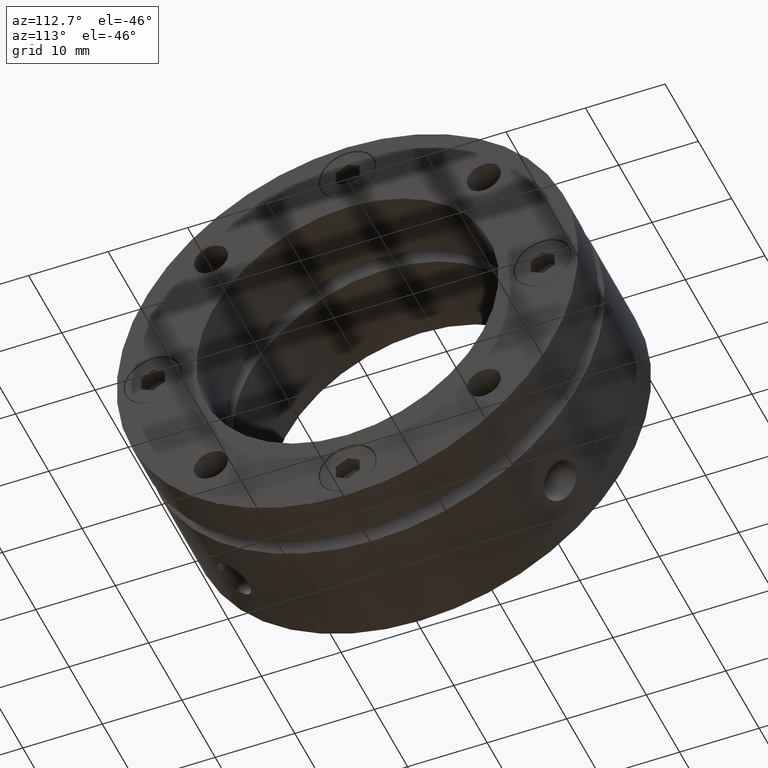
[diagram: clean part render]
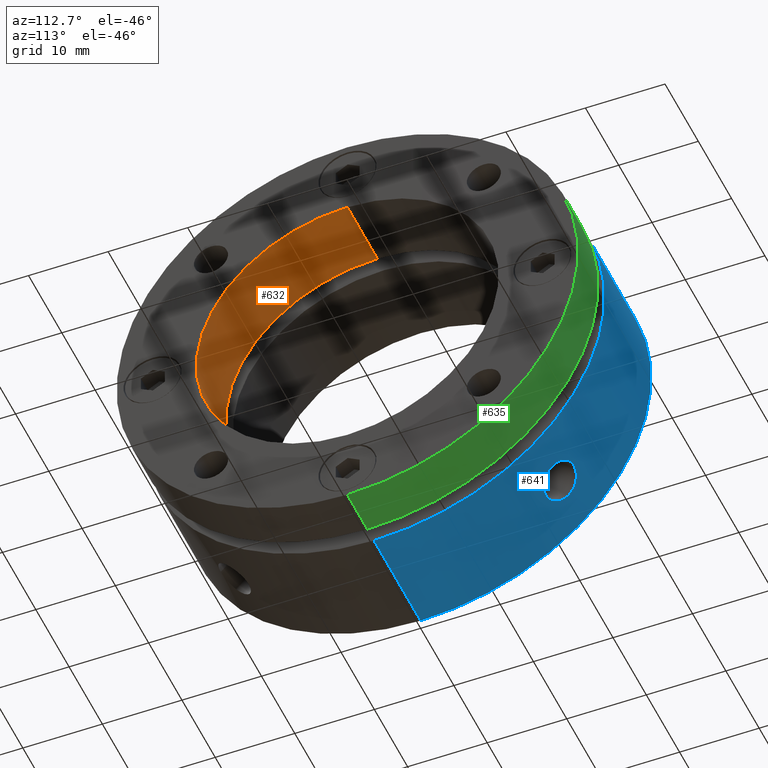
[diagram: same view with three faces highlighted in distinct colors, each labeled with its STEP entity id]
A machine part, auxiliary view with three faces highlighted in distinct colors.
Their STEP definitions:

[orange] entity #632 — the highlighted cylindrical surface (partial cylindrical patch) has radius 19 mm, axis along (1, 0, 0).
#45 = ORIENTED_EDGE ( 'NONE', *, *, #3517, .T. ) ;
#71 = ORIENTED_EDGE ( 'NONE', *, *, #3499, .F. ) ;
#155 = ORIENTED_EDGE ( 'NONE', *, *, #3515, .T. ) ;
#181 = ORIENTED_EDGE ( 'NONE', *, *, #3519, .F. ) ;
#452 = VERTEX_POINT ( 'NONE', #1709 ) ;
#453 = VERTEX_POINT ( 'NONE', #1702 ) ;
#457 = VERTEX_POINT ( 'NONE', #1712 ) ;
#458 = VERTEX_POINT ( 'NONE', #1713 ) ;
#524 = AXIS2_PLACEMENT_3D ( 'NONE', #2991, #2992, #2993 ) ;
#534 = AXIS2_PLACEMENT_3D ( 'NONE', #3037, #3038, #3039 ) ;
#632 = ADVANCED_FACE ( 'NONE', ( #1406 ), #1415, .F. ) ;
#774 = AXIS2_PLACEMENT_3D ( 'NONE', #1864, #1862, #1860 ) ;
#1115 = CIRCLE ( 'NONE', #524, 19.00000000000000000 ) ;
#1137 = LINE ( 'NONE', #3032, #1140 ) ;
#1139 = CIRCLE ( 'NONE', #534, 19.00000000000000000 ) ;
#1140 = VECTOR ( 'NONE', #3034, 1000.000000000000000 ) ;
#1141 = LINE ( 'NONE', #3040, #1146 ) ;
#1146 = VECTOR ( 'NONE', #3036, 1000.000000000000000 ) ;
#1406 = FACE_OUTER_BOUND ( 'NONE', #3332, .T. ) ;
#1415 = CYLINDRICAL_SURFACE ( 'NONE', #774, 19.00000000000000000 ) ;
#1702 = CARTESIAN_POINT ( 'NONE',  ( 21.99999999999999300, 0.0000000000000000000, -19.00000000000000000 ) ) ;
#1709 = CARTESIAN_POINT ( 'NONE',  ( 21.99999999999999300, 2.326828918379971000E-015, 19.00000000000000000 ) ) ;
#1712 = CARTESIAN_POINT ( 'NONE',  ( 13.00000000000001100, 2.326828918379971000E-015, 19.00000000000000000 ) ) ;
#1713 = CARTESIAN_POINT ( 'NONE',  ( 13.00000000000001100, 0.0000000000000000000, -19.00000000000000000 ) ) ;
#1860 = DIRECTION ( 'NONE',  ( 0.0000000000000000000, 0.0000000000000000000, -1.000000000000000000 ) ) ;
#1862 = DIRECTION ( 'NONE',  ( 1.000000000000000000, 0.0000000000000000000, 0.0000000000000000000 ) ) ;
#1864 = CARTESIAN_POINT ( 'NONE',  ( 10.99999999999999500, 0.0000000000000000000, 0.0000000000000000000 ) ) ;
#2991 = CARTESIAN_POINT ( 'NONE',  ( 21.99999999999999300, 0.0000000000000000000, 0.0000000000000000000 ) ) ;
#2992 = DIRECTION ( 'NONE',  ( -1.000000000000000000, -0.0000000000000000000, -0.0000000000000000000 ) ) ;
#2993 = DIRECTION ( 'NONE',  ( 0.0000000000000000000, 0.0000000000000000000, -1.000000000000000000 ) ) ;
#3032 = CARTESIAN_POINT ( 'NONE',  ( 10.99999999999999500, 2.326828918379971000E-015, 19.00000000000000000 ) ) ;
#3034 = DIRECTION ( 'NONE',  ( 1.000000000000000000, 0.0000000000000000000, 0.0000000000000000000 ) ) ;
#3036 = DIRECTION ( 'NONE',  ( 1.000000000000000000, 0.0000000000000000000, 0.0000000000000000000 ) ) ;
#3037 = CARTESIAN_POINT ( 'NONE',  ( 13.00000000000001100, 0.0000000000000000000, 0.0000000000000000000 ) ) ;
#3038 = DIRECTION ( 'NONE',  ( -1.000000000000000000, -0.0000000000000000000, -0.0000000000000000000 ) ) ;
#3039 = DIRECTION ( 'NONE',  ( 0.0000000000000000000, 0.0000000000000000000, -1.000000000000000000 ) ) ;
#3040 = CARTESIAN_POINT ( 'NONE',  ( 10.99999999999999500, 0.0000000000000000000, -19.00000000000000000 ) ) ;
#3332 = EDGE_LOOP ( 'NONE', ( #45, #155, #71, #181 ) ) ;
#3499 = EDGE_CURVE ( 'NONE', #453, #452, #1115, .T. ) ;
#3515 = EDGE_CURVE ( 'NONE', #457, #452, #1137, .T. ) ;
#3517 = EDGE_CURVE ( 'NONE', #458, #457, #1139, .T. ) ;
#3519 = EDGE_CURVE ( 'NONE', #458, #453, #1141, .T. ) ;

[blue] entity #641 — the highlighted cylindrical surface (partial cylindrical patch) has radius 29 mm, axis along (1, 0, 0).
#3 = CARTESIAN_POINT ( 'NONE',  ( -8.673617379884035500E-015, 0.0000000000000000000, 0.0000000000000000000 ) ) ;
#8 = ORIENTED_EDGE ( 'NONE', *, *, #3418, .T. ) ;
#25 = ORIENTED_EDGE ( 'NONE', *, *, #3421, .T. ) ;
#35 = ORIENTED_EDGE ( 'NONE', *, *, #3436, .T. ) ;
#47 = ORIENTED_EDGE ( 'NONE', *, *, #3429, .T. ) ;
#54 = ORIENTED_EDGE ( 'NONE', *, *, #859, .T. ) ;
#78 = ORIENTED_EDGE ( 'NONE', *, *, #857, .T. ) ;
#103 = ORIENTED_EDGE ( 'NONE', *, *, #3434, .T. ) ;
#109 = EDGE_LOOP ( 'NONE', ( #47, #8, #35, #165 ) ) ;
#165 = ORIENTED_EDGE ( 'NONE', *, *, #3432, .F. ) ;
#493 = AXIS2_PLACEMENT_3D ( 'NONE', #3, #2595, #2790 ) ;
#496 = AXIS2_PLACEMENT_3D ( 'NONE', #2837, #2838, #2839 ) ;
#641 = ADVANCED_FACE ( 'NONE', ( #1424, #1432, #1428 ), #1435, .T. ) ;
#783 = AXIS2_PLACEMENT_3D ( 'NONE', #1889, #1890, #1888 ) ;
#857 = EDGE_CURVE ( 'NONE', #1211, #1202, #1641, .T. ) ;
#859 = EDGE_CURVE ( 'NONE', #1201, #1210, #1646, .T. ) ;
#990 = LINE ( 'NONE', #2546, #994 ) ;
#994 = VECTOR ( 'NONE', #2543, 1000.000000000000000 ) ;
#1005 = CIRCLE ( 'NONE', #493, 29.00000000000000400 ) ;
#1008 = LINE ( 'NONE', #3556, #1015 ) ;
#1012 = CIRCLE ( 'NONE', #496, 29.00000000000000400 ) ;
#1015 = VECTOR ( 'NONE', #2795, 1000.000000000000000 ) ;
#1200 = VERTEX_POINT ( 'NONE', #2279 ) ;
#1201 = VERTEX_POINT ( 'NONE', #2280 ) ;
#1202 = VERTEX_POINT ( 'NONE', #2281 ) ;
#1207 = VERTEX_POINT ( 'NONE', #2286 ) ;
#1210 = VERTEX_POINT ( 'NONE', #2289 ) ;
#1211 = VERTEX_POINT ( 'NONE', #2290 ) ;
#1213 = VERTEX_POINT ( 'NONE', #2292 ) ;
#1214 = VERTEX_POINT ( 'NONE', #2293 ) ;
#1424 = FACE_BOUND ( 'NONE', #3303, .T. ) ;
#1428 = FACE_OUTER_BOUND ( 'NONE', #109, .T. ) ;
#1432 = FACE_BOUND ( 'NONE', #3305, .T. ) ;
#1435 = CYLINDRICAL_SURFACE ( 'NONE', #783, 29.00000000000000400 ) ;
#1636 = B_SPLINE_CURVE_WITH_KNOTS ( 'NONE', 3,
 ( #2553, #2551, #2556, #2557, #2558, #2559, #2560, #2561, #2562, #2563, #2564, #2565, #2566, #2567, #2568, #2569, #2570, #2571, #2572, #2573, #2574, #2575, #2576, #2577, #2578, #2579, #2580, #2581, #2582, #2583, #2584, #2585, #2586, #2587 ),
 .UNSPECIFIED., .F., .F.,
 ( 4, 2, 2, 2, 2, 2, 2, 2, 2, 2, 2, 2, 2, 2, 2, 2, 4 ),
 ( 0.01172885886875082000, 0.01221748855719004300, 0.01270611824562926600, 0.01319474793406848900, 0.01368337762250771200, 0.01417200731094693500, 0.01466063699938616000, 0.01514926668782538300, 0.01563789637626460800, 0.01612652606470382800, 0.01661515575314305400, 0.01710378544158227800, 0.01759241513002150100, 0.01808104481846072400, 0.01856967450689994700, 0.01905830419533917000, 0.01954693388377839300 ),
 .UNSPECIFIED. ) ;
#1639 = B_SPLINE_CURVE_WITH_KNOTS ( 'NONE', 3,
 ( #2796, #2797, #2801, #2802, #2803, #2804, #2805, #2806, #2807, #2808, #2809, #2810, #2811, #2812, #2813, #2814, #2815, #2816, #2817, #2818, #2819, #2820, #2821, #2822, #2823, #2824, #2825, #2826, #2827, #2828, #2829, #2830, #2831, #2832 ),
 .UNSPECIFIED., .F., .F.,
 ( 4, 2, 2, 2, 2, 2, 2, 2, 2, 2, 2, 2, 2, 2, 2, 2, 4 ),
 ( 0.003910783848401371000, 0.004399413537173209100, 0.004888043225945048200, 0.005376672914716888900, 0.005865302603488729700, 0.006353932292260569500, 0.006842561981032411200, 0.007331191669804252800, 0.007819821358576093500, 0.008308451047347936000, 0.008797080736119775000, 0.009285710424891617500, 0.009774340113663456500, 0.01026296980243529900, 0.01075159949120714000, 0.01124022917997898400, 0.01172885886875083200 ),
 .UNSPECIFIED. ) ;
#1641 = B_SPLINE_CURVE_WITH_KNOTS ( 'NONE', 3,
 ( #2038, #2037, #2036, #2039, #2040, #2041, #2042, #2043, #2044, #2045, #2046, #2047, #2048, #2049, #2050, #2051, #2052, #2053, #2054, #2055, #2056, #2057, #2058, #2059, #2060, #2061, #2062, #2063, #2064, #2065, #2066, #2067, #2068, #2069 ),
 .UNSPECIFIED., .F., .F.,
 ( 4, 2, 2, 2, 2, 2, 2, 2, 2, 2, 2, 2, 2, 2, 2, 2, 4 ),
 ( 0.01172885886875083200, 0.01221748855719005500, 0.01270611824562928000, 0.01319474793406850300, 0.01368337762250772600, 0.01417200731094694900, 0.01466063699938617400, 0.01514926668782539700, 0.01563789637626462200, 0.01612652606470384500, 0.01661515575314306800, 0.01710378544158229100, 0.01759241513002151500, 0.01808104481846074100, 0.01856967450689996400, 0.01905830419533918700, 0.01954693388377841100 ),
 .UNSPECIFIED. ) ;
#1646 = B_SPLINE_CURVE_WITH_KNOTS ( 'NONE', 3,
 ( #2075, #2070, #2071, #2076, #2077, #2078, #2079, #2080, #2081, #2082, #2083, #2084, #2085, #2086, #2087, #2088, #2089, #2090, #2091, #2092, #2093, #2094, #2095, #2096, #2097, #2098, #2099, #2100, #2101, #2102, #2103, #2104, #2105, #2106 ),
 .UNSPECIFIED., .F., .F.,
 ( 4, 2, 2, 2, 2, 2, 2, 2, 2, 2, 2, 2, 2, 2, 2, 2, 4 ),
 ( 0.003910783848401363200, 0.004399413537173201300, 0.004888043225945040400, 0.005376672914716881100, 0.005865302603488721900, 0.006353932292260562600, 0.006842561981032403400, 0.007331191669804244100, 0.007819821358576086600, 0.008308451047347925600, 0.008797080736119768100, 0.009285710424891608800, 0.009774340113663449600, 0.01026296980243529200, 0.01075159949120713100, 0.01124022917997897500, 0.01172885886875082000 ),
 .UNSPECIFIED. ) ;
#1888 = DIRECTION ( 'NONE',  ( 0.0000000000000000000, 0.0000000000000000000, -1.000000000000000000 ) ) ;
#1889 = CARTESIAN_POINT ( 'NONE',  ( 10.99999999999999300, 0.0000000000000000000, 0.0000000000000000000 ) ) ;
#1890 = DIRECTION ( 'NONE',  ( 1.000000000000000000, 0.0000000000000000000, 0.0000000000000000000 ) ) ;
#2036 = CARTESIAN_POINT ( 'NONE',  ( 6.671209411699219800, 22.18698607935332100, -18.67454627982972300 ) ) ;
#2037 = CARTESIAN_POINT ( 'NONE',  ( 6.836889293315132400, 22.19752466078071900, -18.66199075484798800 ) ) ;
#2038 = CARTESIAN_POINT ( 'NONE',  ( 6.999999999999992900, 22.19752466078072200, -18.66199075484799200 ) ) ;
#2039 = CARTESIAN_POINT ( 'NONE',  ( 6.350602221593687700, 22.14559756433346700, -18.72360912221539000 ) ) ;
#2040 = CARTESIAN_POINT ( 'NONE',  ( 6.194766286574620500, 22.11497340511872200, -18.75984821444914600 ) ) ;
#2041 = CARTESIAN_POINT ( 'NONE',  ( 5.892077017659619100, 22.03341440721714100, -18.85557220818597900 ) ) ;
#2042 = CARTESIAN_POINT ( 'NONE',  ( 5.745830729501783200, 21.98232687178327200, -18.91521975453383000 ) ) ;
#2043 = CARTESIAN_POINT ( 'NONE',  ( 5.475107132603087100, 21.86353243827018000, -19.05240620973999900 ) ) ;
#2044 = CARTESIAN_POINT ( 'NONE',  ( 5.348899357913803800, 21.79542242833628800, -19.13042679679525900 ) ) ;
#2045 = CARTESIAN_POINT ( 'NONE',  ( 5.115517966158140700, 21.64047073392180200, -19.30553533760306100 ) ) ;
#2046 = CARTESIAN_POINT ( 'NONE',  ( 5.012136730428754700, 21.55612772977841400, -19.39978651902036000 ) ) ;
#2047 = CARTESIAN_POINT ( 'NONE',  ( 4.831177672506670200, 21.37390565747478300, -19.60037031873259000 ) ) ;
#2048 = CARTESIAN_POINT ( 'NONE',  ( 4.752923106869284100, 21.27482800575629100, -19.70798420472281300 ) ) ;
#2049 = CARTESIAN_POINT ( 'NONE',  ( 4.627524710443264400, 21.06777683135185000, -19.92916775664428600 ) ) ;
#2050 = CARTESIAN_POINT ( 'NONE',  ( 4.580265046816364800, 20.96038554305367900, -20.04215347677030200 ) ) ;
#2051 = CARTESIAN_POINT ( 'NONE',  ( 4.516342887760563600, 20.73762049845395300, -20.27256210156900800 ) ) ;
#2052 = CARTESIAN_POINT ( 'NONE',  ( 4.499883565422372600, 20.62167052778379200, -20.39053697614957300 ) ) ;
#2053 = CARTESIAN_POINT ( 'NONE',  ( 4.500117689778695900, 20.38801750899700600, -20.62416145168139200 ) ) ;
#2054 = CARTESIAN_POINT ( 'NONE',  ( 4.516447802042619300, 20.27215593875855900, -20.73801408011930600 ) ) ;
#2055 = CARTESIAN_POINT ( 'NONE',  ( 4.580206628080247800, 20.04239206593742400, -20.96015397528889000 ) ) ;
#2056 = CARTESIAN_POINT ( 'NONE',  ( 4.628416924226098800, 19.92726727274733600, -21.06957362854537800 ) ) ;
#2057 = CARTESIAN_POINT ( 'NONE',  ( 4.754105446092657900, 19.70623094034710500, -21.27645120723633800 ) ) ;
#2058 = CARTESIAN_POINT ( 'NONE',  ( 4.830982297680537700, 19.60056917450993600, -21.37372611167655400 ) ) ;
#2059 = CARTESIAN_POINT ( 'NONE',  ( 5.012565598953405500, 19.39932887028400200, -21.55654237683489800 ) ) ;
#2060 = CARTESIAN_POINT ( 'NONE',  ( 5.118178343002605300, 19.30341673895289000, -21.64235231917999900 ) ) ;
#2061 = CARTESIAN_POINT ( 'NONE',  ( 5.348833087511976300, 19.13060039567769600, -21.79526187514384700 ) ) ;
#2062 = CARTESIAN_POINT ( 'NONE',  ( 5.474693285963685000, 19.05255251492174700, -21.86340826021076800 ) ) ;
#2063 = CARTESIAN_POINT ( 'NONE',  ( 5.748046894809351500, 18.91416056203410200, -21.98324153349767200 ) ) ;
#2064 = CARTESIAN_POINT ( 'NONE',  ( 5.893454299515426900, 18.85511098082234600, -22.03380790690972500 ) ) ;
#2065 = CARTESIAN_POINT ( 'NONE',  ( 6.194281383739776100, 18.76002730759315900, -22.11482028857760400 ) ) ;
#2066 = CARTESIAN_POINT ( 'NONE',  ( 6.351927524470921700, 18.72328271223128500, -22.14587360183627100 ) ) ;
#2067 = CARTESIAN_POINT ( 'NONE',  ( 6.674643550635283700, 18.67414618415509900, -22.18732289852592700 ) ) ;
#2068 = CARTESIAN_POINT ( 'NONE',  ( 6.836889045201711900, 18.66199075484798400, -22.19752466078072900 ) ) ;
#2069 = CARTESIAN_POINT ( 'NONE',  ( 6.999999999999992900, 18.66199075484798400, -22.19752466078072900 ) ) ;
#2070 = CARTESIAN_POINT ( 'NONE',  ( 7.163110954909309500, 22.19752466078073300, 18.66199075484798800 ) ) ;
#2071 = CARTESIAN_POINT ( 'NONE',  ( 7.328791089934384200, 22.18698604690868200, 18.67454631854177500 ) ) ;
#2075 = CARTESIAN_POINT ( 'NONE',  ( 6.999999999999992900, 22.19752466078072900, 18.66199075484798400 ) ) ;
#2076 = CARTESIAN_POINT ( 'NONE',  ( 7.649398740487888500, 22.14559740782088000, 18.72360930749730900 ) ) ;
#2077 = CARTESIAN_POINT ( 'NONE',  ( 7.805234892621212100, 22.11497315728584900, 18.75984850724459800 ) ) ;
#2078 = CARTESIAN_POINT ( 'NONE',  ( 8.107924566968145900, 22.03341391034282300, 18.85557278943687700 ) ) ;
#2079 = CARTESIAN_POINT ( 'NONE',  ( 8.254171002879294500, 21.98232622904115600, 18.91522050272665100 ) ) ;
#2080 = CARTESIAN_POINT ( 'NONE',  ( 8.524894842937687400, 21.86353145396199000, 19.05240734050099900 ) ) ;
#2081 = CARTESIAN_POINT ( 'NONE',  ( 8.651102712503501400, 21.79542124658690800, 19.13042814526029300 ) ) ;
#2082 = CARTESIAN_POINT ( 'NONE',  ( 8.884484225384289500, 21.64046908597384400, 19.30553718693549900 ) ) ;
#2083 = CARTESIAN_POINT ( 'NONE',  ( 8.987865394785846000, 21.55612589309481200, 19.39978856227068200 ) ) ;
#2084 = CARTESIAN_POINT ( 'NONE',  ( 9.168824333069506900, 21.37390333452956500, 19.60037285425833200 ) ) ;
#2085 = CARTESIAN_POINT ( 'NONE',  ( 9.247078799891678400, 21.27482539859592600, 19.70798702155400800 ) ) ;
#2086 = CARTESIAN_POINT ( 'NONE',  ( 9.372476817786655100, 21.06777376682278200, 19.92917099862554400 ) ) ;
#2087 = CARTESIAN_POINT ( 'NONE',  ( 9.419736255052415100, 20.96038223865167900, 20.04215693526426600 ) ) ;
#2088 = CARTESIAN_POINT ( 'NONE',  ( 9.483657853192907400, 20.73761668369855100, 20.27256600650579400 ) ) ;
#2089 = CARTESIAN_POINT ( 'NONE',  ( 9.500116828457468200, 20.62166606313038700, 20.39054148882278000 ) ) ;
#2090 = CARTESIAN_POINT ( 'NONE',  ( 9.499881907783503700, 20.38801344745415600, 20.62416546416109100 ) ) ;
#2091 = CARTESIAN_POINT ( 'NONE',  ( 9.483551465865751600, 20.27215207472594100, 20.73801785504051800 ) ) ;
#2092 = CARTESIAN_POINT ( 'NONE',  ( 9.419792068213675800, 20.04238859372669900, 20.96015729318005300 ) ) ;
#2093 = CARTESIAN_POINT ( 'NONE',  ( 9.371581518802322800, 19.92726399046937400, 21.06957673019084600 ) ) ;
#2094 = CARTESIAN_POINT ( 'NONE',  ( 9.245892671011118200, 19.70622817327488700, 21.27645376744169400 ) ) ;
#2095 = CARTESIAN_POINT ( 'NONE',  ( 9.169015707227634600, 19.60056664924231400, 21.37372842538444200 ) ) ;
#2096 = CARTESIAN_POINT ( 'NONE',  ( 8.987432254802950400, 19.39932680590989400, 21.55654423257545500 ) ) ;
#2097 = CARTESIAN_POINT ( 'NONE',  ( 8.881819506822875400, 19.30341492832802800, 21.64235393242091400 ) ) ;
#2098 = CARTESIAN_POINT ( 'NONE',  ( 8.651164854266376400, 19.13059905319686000, 21.79526305180085900 ) ) ;
#2099 = CARTESIAN_POINT ( 'NONE',  ( 8.525304735573518800, 19.05255138129913900, 21.86340924704134600 ) ) ;
#2100 = CARTESIAN_POINT ( 'NONE',  ( 8.251951343062524200, 18.91415980189287200, 21.98324218647277900 ) ) ;
#2101 = CARTESIAN_POINT ( 'NONE',  ( 8.106544136692129100, 18.85511040750020200, 22.03380839699892800 ) ) ;
#2102 = CARTESIAN_POINT ( 'NONE',  ( 7.805717435693329900, 18.76002701349492700, 22.11482053754050600 ) ) ;
#2103 = CARTESIAN_POINT ( 'NONE',  ( 7.648071496905436600, 18.72328252472629700, 22.14587376021934900 ) ) ;
#2104 = CARTESIAN_POINT ( 'NONE',  ( 7.325355955965575200, 18.67414614753104700, 22.18732292920768900 ) ) ;
#2105 = CARTESIAN_POINT ( 'NONE',  ( 7.163110706795888100, 18.66199075484799200, 22.19752466078072200 ) ) ;
#2106 = CARTESIAN_POINT ( 'NONE',  ( 6.999999999999992900, 18.66199075484799200, 22.19752466078072200 ) ) ;
#2279 = CARTESIAN_POINT ( 'NONE',  ( -8.673617379884035500E-015, 0.0000000000000000000, -29.00000000000000400 ) ) ;
#2280 = CARTESIAN_POINT ( 'NONE',  ( 6.999999999999992900, 22.19752466078072900, 18.66199075484798400 ) ) ;
#2281 = CARTESIAN_POINT ( 'NONE',  ( 6.999999999999992900, 18.66199075484798400, -22.19752466078072900 ) ) ;
#2286 = CARTESIAN_POINT ( 'NONE',  ( -8.673617379884035500E-015, 3.551475717527324800E-015, 29.00000000000000400 ) ) ;
#2289 = CARTESIAN_POINT ( 'NONE',  ( 6.999999999999992900, 18.66199075484799200, 22.19752466078072200 ) ) ;
#2290 = CARTESIAN_POINT ( 'NONE',  ( 6.999999999999992900, 22.19752466078072200, -18.66199075484799200 ) ) ;
#2292 = CARTESIAN_POINT ( 'NONE',  ( 14.00000000000000000, 0.0000000000000000000, -29.00000000000000400 ) ) ;
#2293 = CARTESIAN_POINT ( 'NONE',  ( 14.00000000000000000, 3.551475717527324800E-015, 29.00000000000000400 ) ) ;
#2543 = DIRECTION ( 'NONE',  ( 1.000000000000000000, 0.0000000000000000000, 0.0000000000000000000 ) ) ;
#2546 = CARTESIAN_POINT ( 'NONE',  ( 10.99999999999999300, 3.551475717527324800E-015, 29.00000000000000400 ) ) ;
#2551 = CARTESIAN_POINT ( 'NONE',  ( 6.836889293315128000, 18.66199075484798800, 22.19752466078071900 ) ) ;
#2553 = CARTESIAN_POINT ( 'NONE',  ( 6.999999999999992900, 18.66199075484799200, 22.19752466078072200 ) ) ;
#2556 = CARTESIAN_POINT ( 'NONE',  ( 6.671209411699217100, 18.67454627982972300, 22.18698607935332100 ) ) ;
#2557 = CARTESIAN_POINT ( 'NONE',  ( 6.350602221593685000, 18.72360912221539000, 22.14559756433346700 ) ) ;
#2558 = CARTESIAN_POINT ( 'NONE',  ( 6.194766286574620500, 18.75984821444914600, 22.11497340511872200 ) ) ;
#2559 = CARTESIAN_POINT ( 'NONE',  ( 5.892077017659619100, 18.85557220818597900, 22.03341440721714100 ) ) ;
#2560 = CARTESIAN_POINT ( 'NONE',  ( 5.745830729501782300, 18.91521975453383000, 21.98232687178327200 ) ) ;
#2561 = CARTESIAN_POINT ( 'NONE',  ( 5.475107132603085300, 19.05240620974000300, 21.86353243827018000 ) ) ;
#2562 = CARTESIAN_POINT ( 'NONE',  ( 5.348899357913802000, 19.13042679679526300, 21.79542242833628800 ) ) ;
#2563 = CARTESIAN_POINT ( 'NONE',  ( 5.115517966158137100, 19.30553533760306100, 21.64047073392180200 ) ) ;
#2564 = CARTESIAN_POINT ( 'NONE',  ( 5.012136730428753000, 19.39978651902036000, 21.55612772977841400 ) ) ;
#2565 = CARTESIAN_POINT ( 'NONE',  ( 4.831177672506668400, 19.60037031873259000, 21.37390565747478300 ) ) ;
#2566 = CARTESIAN_POINT ( 'NONE',  ( 4.752923106869282300, 19.70798420472281300, 21.27482800575629100 ) ) ;
#2567 = CARTESIAN_POINT ( 'NONE',  ( 4.627524710443262600, 19.92916775664428600, 21.06777683135185000 ) ) ;
#2568 = CARTESIAN_POINT ( 'NONE',  ( 4.580265046816363900, 20.04215347677030600, 20.96038554305367900 ) ) ;
#2569 = CARTESIAN_POINT ( 'NONE',  ( 4.516342887760561800, 20.27256210156902200, 20.73762049845395000 ) ) ;
#2570 = CARTESIAN_POINT ( 'NONE',  ( 4.499883565422371700, 20.39053697614956900, 20.62167052778379200 ) ) ;
#2571 = CARTESIAN_POINT ( 'NONE',  ( 4.500117689778695900, 20.62416145168139200, 20.38801750899700200 ) ) ;
#2572 = CARTESIAN_POINT ( 'NONE',  ( 4.516447802042619300, 20.73801408011930600, 20.27215593875855100 ) ) ;
#2573 = CARTESIAN_POINT ( 'NONE',  ( 4.580206628080246900, 20.96015397528889000, 20.04239206593742400 ) ) ;
#2574 = CARTESIAN_POINT ( 'NONE',  ( 4.628416924226099700, 21.06957362854537800, 19.92726727274733600 ) ) ;
#2575 = CARTESIAN_POINT ( 'NONE',  ( 4.754105446092659700, 21.27645120723633100, 19.70623094034710100 ) ) ;
#2576 = CARTESIAN_POINT ( 'NONE',  ( 4.830982297680542100, 21.37372611167655700, 19.60056917450993600 ) ) ;
#2577 = CARTESIAN_POINT ( 'NONE',  ( 5.012565598953408100, 21.55654237683489800, 19.39932887028399800 ) ) ;
#2578 = CARTESIAN_POINT ( 'NONE',  ( 5.118178343002604400, 21.64235231918000200, 19.30341673895289000 ) ) ;
#2579 = CARTESIAN_POINT ( 'NONE',  ( 5.348833087511977200, 21.79526187514384700, 19.13060039567768600 ) ) ;
#2580 = CARTESIAN_POINT ( 'NONE',  ( 5.474693285963688500, 21.86340826021076500, 19.05255251492174300 ) ) ;
#2581 = CARTESIAN_POINT ( 'NONE',  ( 5.748046894809355900, 21.98324153349767200, 18.91416056203409500 ) ) ;
#2582 = CARTESIAN_POINT ( 'NONE',  ( 5.893454299515433100, 22.03380790690972500, 18.85511098082234200 ) ) ;
#2583 = CARTESIAN_POINT ( 'NONE',  ( 6.194281383739781400, 22.11482028857760400, 18.76002730759316300 ) ) ;
#2584 = CARTESIAN_POINT ( 'NONE',  ( 6.351927524470922600, 22.14587360183627100, 18.72328271223128500 ) ) ;
#2585 = CARTESIAN_POINT ( 'NONE',  ( 6.674643550635284600, 22.18732289852592700, 18.67414618415509900 ) ) ;
#2586 = CARTESIAN_POINT ( 'NONE',  ( 6.836889045201713700, 22.19752466078072900, 18.66199075484798400 ) ) ;
#2587 = CARTESIAN_POINT ( 'NONE',  ( 6.999999999999992900, 22.19752466078072900, 18.66199075484798400 ) ) ;
#2595 = DIRECTION ( 'NONE',  ( 1.000000000000000000, 0.0000000000000000000, 0.0000000000000000000 ) ) ;
#2790 = DIRECTION ( 'NONE',  ( 0.0000000000000000000, 0.0000000000000000000, -1.000000000000000000 ) ) ;
#2795 = DIRECTION ( 'NONE',  ( 1.000000000000000000, 0.0000000000000000000, 0.0000000000000000000 ) ) ;
#2796 = CARTESIAN_POINT ( 'NONE',  ( 6.999999999999992900, 18.66199075484798400, -22.19752466078072900 ) ) ;
#2797 = CARTESIAN_POINT ( 'NONE',  ( 7.163110954909309500, 18.66199075484798100, -22.19752466078074300 ) ) ;
#2801 = CARTESIAN_POINT ( 'NONE',  ( 7.328791089934385100, 18.67454631854178300, -22.18698604690868200 ) ) ;
#2802 = CARTESIAN_POINT ( 'NONE',  ( 7.649398740487889400, 18.72360930749730900, -22.14559740782088000 ) ) ;
#2803 = CARTESIAN_POINT ( 'NONE',  ( 7.805234892621211200, 18.75984850724459500, -22.11497315728584600 ) ) ;
#2804 = CARTESIAN_POINT ( 'NONE',  ( 8.107924566968145900, 18.85557278943688100, -22.03341391034282600 ) ) ;
#2805 = CARTESIAN_POINT ( 'NONE',  ( 8.254171002879296300, 18.91522050272665100, -21.98232622904115600 ) ) ;
#2806 = CARTESIAN_POINT ( 'NONE',  ( 8.524894842937691000, 19.05240734050100200, -21.86353145396199700 ) ) ;
#2807 = CARTESIAN_POINT ( 'NONE',  ( 8.651102712503494300, 19.13042814526028900, -21.79542124658690500 ) ) ;
#2808 = CARTESIAN_POINT ( 'NONE',  ( 8.884484225384282400, 19.30553718693548900, -21.64046908597384100 ) ) ;
#2809 = CARTESIAN_POINT ( 'NONE',  ( 8.987865394785846000, 19.39978856227068200, -21.55612589309480900 ) ) ;
#2810 = CARTESIAN_POINT ( 'NONE',  ( 9.168824333069506900, 19.60037285425833500, -21.37390333452956200 ) ) ;
#2811 = CARTESIAN_POINT ( 'NONE',  ( 9.247078799891680100, 19.70798702155401500, -21.27482539859592900 ) ) ;
#2812 = CARTESIAN_POINT ( 'NONE',  ( 9.372476817786656900, 19.92917099862554800, -21.06777376682278200 ) ) ;
#2813 = CARTESIAN_POINT ( 'NONE',  ( 9.419736255052415100, 20.04215693526427000, -20.96038223865168200 ) ) ;
#2814 = CARTESIAN_POINT ( 'NONE',  ( 9.483657853192905700, 20.27256600650579100, -20.73761668369854800 ) ) ;
#2815 = CARTESIAN_POINT ( 'NONE',  ( 9.500116828457468200, 20.39054148882278000, -20.62166606313038700 ) ) ;
#2816 = CARTESIAN_POINT ( 'NONE',  ( 9.499881907783503700, 20.62416546416109100, -20.38801344745415600 ) ) ;
#2817 = CARTESIAN_POINT ( 'NONE',  ( 9.483551465865751600, 20.73801785504051800, -20.27215207472594100 ) ) ;
#2818 = CARTESIAN_POINT ( 'NONE',  ( 9.419792068213674000, 20.96015729318004600, -20.04238859372669200 ) ) ;
#2819 = CARTESIAN_POINT ( 'NONE',  ( 9.371581518802321000, 21.06957673019084300, -19.92726399046937400 ) ) ;
#2820 = CARTESIAN_POINT ( 'NONE',  ( 9.245892671011120000, 21.27645376744169800, -19.70622817327490100 ) ) ;
#2821 = CARTESIAN_POINT ( 'NONE',  ( 9.169015707227634600, 21.37372842538444200, -19.60056664924231000 ) ) ;
#2822 = CARTESIAN_POINT ( 'NONE',  ( 8.987432254802952200, 21.55654423257545500, -19.39932680590989700 ) ) ;
#2823 = CARTESIAN_POINT ( 'NONE',  ( 8.881819506822875400, 21.64235393242091000, -19.30341492832802800 ) ) ;
#2824 = CARTESIAN_POINT ( 'NONE',  ( 8.651164854266376400, 21.79526305180085200, -19.13059905319686000 ) ) ;
#2825 = CARTESIAN_POINT ( 'NONE',  ( 8.525304735573520500, 21.86340924704133200, -19.05255138129913600 ) ) ;
#2826 = CARTESIAN_POINT ( 'NONE',  ( 8.251951343062527800, 21.98324218647276500, -18.91415980189286100 ) ) ;
#2827 = CARTESIAN_POINT ( 'NONE',  ( 8.106544136692132700, 22.03380839699892800, -18.85511040750020200 ) ) ;
#2828 = CARTESIAN_POINT ( 'NONE',  ( 7.805717435693329900, 22.11482053754051300, -18.76002701349493100 ) ) ;
#2829 = CARTESIAN_POINT ( 'NONE',  ( 7.648071496905436600, 22.14587376021934900, -18.72328252472630400 ) ) ;
#2830 = CARTESIAN_POINT ( 'NONE',  ( 7.325355955965577000, 22.18732292920768500, -18.67414614753105100 ) ) ;
#2831 = CARTESIAN_POINT ( 'NONE',  ( 7.163110706795888100, 22.19752466078072900, -18.66199075484799200 ) ) ;
#2832 = CARTESIAN_POINT ( 'NONE',  ( 6.999999999999992900, 22.19752466078072200, -18.66199075484799200 ) ) ;
#2837 = CARTESIAN_POINT ( 'NONE',  ( 14.00000000000000000, 0.0000000000000000000, 0.0000000000000000000 ) ) ;
#2838 = DIRECTION ( 'NONE',  ( -1.000000000000000000, -0.0000000000000000000, -0.0000000000000000000 ) ) ;
#2839 = DIRECTION ( 'NONE',  ( 0.0000000000000000000, 0.0000000000000000000, -1.000000000000000000 ) ) ;
#3303 = EDGE_LOOP ( 'NONE', ( #25, #54 ) ) ;
#3305 = EDGE_LOOP ( 'NONE', ( #78, #103 ) ) ;
#3418 = EDGE_CURVE ( 'NONE', #1207, #1214, #990, .T. ) ;
#3421 = EDGE_CURVE ( 'NONE', #1210, #1201, #1636, .T. ) ;
#3429 = EDGE_CURVE ( 'NONE', #1200, #1207, #1005, .T. ) ;
#3432 = EDGE_CURVE ( 'NONE', #1200, #1213, #1008, .T. ) ;
#3434 = EDGE_CURVE ( 'NONE', #1202, #1211, #1639, .T. ) ;
#3436 = EDGE_CURVE ( 'NONE', #1214, #1213, #1012, .T. ) ;
#3556 = CARTESIAN_POINT ( 'NONE',  ( 10.99999999999999300, 0.0000000000000000000, -29.00000000000000400 ) ) ;

[green] entity #635 — the highlighted cylindrical surface (partial cylindrical patch) has radius 29 mm, axis along (1, 0, 0).
#83 = ORIENTED_EDGE ( 'NONE', *, *, #3495, .T. ) ;
#95 = ORIENTED_EDGE ( 'NONE', *, *, #3503, .T. ) ;
#162 = ORIENTED_EDGE ( 'NONE', *, *, #3522, .T. ) ;
#168 = ORIENTED_EDGE ( 'NONE', *, *, #3514, .F. ) ;
#455 = VERTEX_POINT ( 'NONE', #1705 ) ;
#456 = VERTEX_POINT ( 'NONE', #1711 ) ;
#522 = AXIS2_PLACEMENT_3D ( 'NONE', #2982, #2983, #2984 ) ;
#526 = AXIS2_PLACEMENT_3D ( 'NONE', #2999, #3000, #3001 ) ;
#635 = ADVANCED_FACE ( 'NONE', ( #1412 ), #1421, .T. ) ;
#777 = AXIS2_PLACEMENT_3D ( 'NONE', #1873, #1871, #1869 ) ;
#1108 = CIRCLE ( 'NONE', #522, 29.00000000000000400 ) ;
#1120 = CIRCLE ( 'NONE', #526, 29.00000000000000400 ) ;
#1136 = LINE ( 'NONE', #3027, #1138 ) ;
#1138 = VECTOR ( 'NONE', #3015, 1000.000000000000000 ) ;
#1149 = LINE ( 'NONE', #3045, #1151 ) ;
#1151 = VECTOR ( 'NONE', #3033, 1000.000000000000000 ) ;
#1412 = FACE_OUTER_BOUND ( 'NONE', #3331, .T. ) ;
#1421 = CYLINDRICAL_SURFACE ( 'NONE', #777, 29.00000000000000400 ) ;
#1705 = CARTESIAN_POINT ( 'NONE',  ( 21.99999999999999300, 0.0000000000000000000, -29.00000000000000400 ) ) ;
#1711 = CARTESIAN_POINT ( 'NONE',  ( 21.99999999999999300, 3.551475717527324800E-015, 29.00000000000000400 ) ) ;
#1869 = DIRECTION ( 'NONE',  ( 0.0000000000000000000, 0.0000000000000000000, -1.000000000000000000 ) ) ;
#1871 = DIRECTION ( 'NONE',  ( 1.000000000000000000, 0.0000000000000000000, 0.0000000000000000000 ) ) ;
#1873 = CARTESIAN_POINT ( 'NONE',  ( 10.99999999999999300, 0.0000000000000000000, 0.0000000000000000000 ) ) ;
#2982 = CARTESIAN_POINT ( 'NONE',  ( 15.99999999999999600, 0.0000000000000000000, 0.0000000000000000000 ) ) ;
#2983 = DIRECTION ( 'NONE',  ( 1.000000000000000000, 0.0000000000000000000, 0.0000000000000000000 ) ) ;
#2984 = DIRECTION ( 'NONE',  ( 0.0000000000000000000, 0.0000000000000000000, -1.000000000000000000 ) ) ;
#2999 = CARTESIAN_POINT ( 'NONE',  ( 21.99999999999999300, 0.0000000000000000000, 0.0000000000000000000 ) ) ;
#3000 = DIRECTION ( 'NONE',  ( -1.000000000000000000, -0.0000000000000000000, -0.0000000000000000000 ) ) ;
#3001 = DIRECTION ( 'NONE',  ( 0.0000000000000000000, 0.0000000000000000000, -1.000000000000000000 ) ) ;
#3015 = DIRECTION ( 'NONE',  ( 1.000000000000000000, 0.0000000000000000000, 0.0000000000000000000 ) ) ;
#3027 = CARTESIAN_POINT ( 'NONE',  ( 10.99999999999999300, 0.0000000000000000000, -29.00000000000000400 ) ) ;
#3033 = DIRECTION ( 'NONE',  ( 1.000000000000000000, 0.0000000000000000000, 0.0000000000000000000 ) ) ;
#3045 = CARTESIAN_POINT ( 'NONE',  ( 10.99999999999999300, 3.551475717527324800E-015, 29.00000000000000400 ) ) ;
#3084 = CARTESIAN_POINT ( 'NONE',  ( 15.99999999999999600, 3.551475717527324800E-015, 29.00000000000000400 ) ) ;
#3089 = CARTESIAN_POINT ( 'NONE',  ( 15.99999999999999600, 0.0000000000000000000, -29.00000000000000400 ) ) ;
#3331 = EDGE_LOOP ( 'NONE', ( #83, #162, #95, #168 ) ) ;
#3495 = EDGE_CURVE ( 'NONE', #3542, #3539, #1108, .T. ) ;
#3503 = EDGE_CURVE ( 'NONE', #456, #455, #1120, .T. ) ;
#3514 = EDGE_CURVE ( 'NONE', #3542, #455, #1136, .T. ) ;
#3522 = EDGE_CURVE ( 'NONE', #3539, #456, #1149, .T. ) ;
#3539 = VERTEX_POINT ( 'NONE', #3084 ) ;
#3542 = VERTEX_POINT ( 'NONE', #3089 ) ;